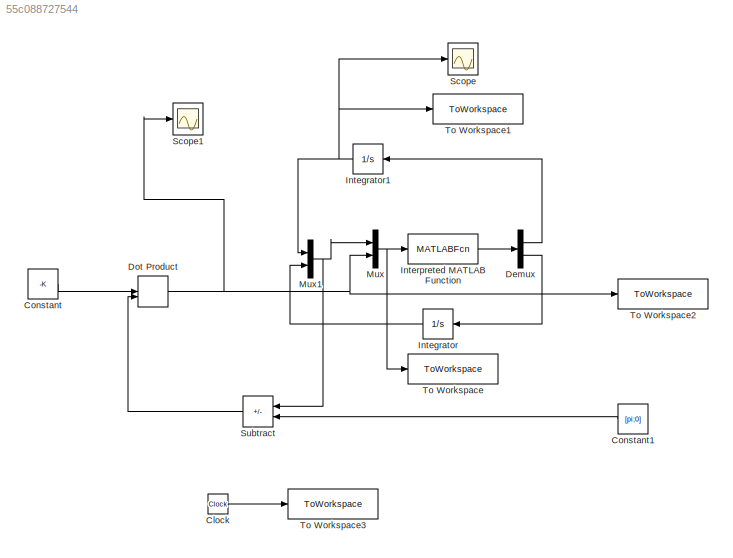
MODEL slx_55c088727544
KIND model
CONFIG AbsTol = auto
CONFIG EnableMultiTasking = off
CONFIG FixedStep = auto
CONFIG MaxStep = auto
CONFIG MinStep = auto
CONFIG RelTol = 1e-3
CONFIG SampleTimeConstraint = Unconstrained
CONFIG SolverName = VariableStepAuto
CONFIG StartTime = 0.0
CONFIG StopTime = 10.0
BLOCK [Clock] Clock
BLOCK [Constant] Constant
  Value = -K
BLOCK [Constant] Constant1
  NameLocation = top
  Value = [pi;0]
BLOCK [Demux] Demux
  Outputs = 2
BLOCK [DotProduct] Dot Product
  OutDataTypeStr = Inherit: Inherit via internal rule
BLOCK [Integrator] Integrator
  NameLocation = top
BLOCK [Integrator] Integrator1
  NameLocation = top
BLOCK [MATLABFcn] Interpreted MATLAB Function
  MATLABFcn = function_WP1
  OutputDimensions = 2
BLOCK [Mux] Mux
  DisplayOption = bar
  Inputs = 2
BLOCK [Mux] Mux1
  DisplayOption = bar
  Inputs = 2
BLOCK [Scope] Scope
  Floating = off
  NumInputPorts = 1
  ScopeSpecificationString = Simulink.scopes.TimeScopeBlockCfg('CurrentConfiguration', extmgr.ConfigurationSet(extmgr.Configuration('Core','General UI',true),extmgr.Configuration('Core','Source UI',true),extmgr.Configuration('Sources','WiredSimulink',true),extmgr.Configuration('Visuals','Time Domain',true,'SerializedDisplays',{struct('MinYLimReal','-0.39273','MaxYLimReal','3.53458','YLabelReal','','MinYLimMag','0.00000','MaxY...<+1362ch>
BLOCK [Scope] Scope1
  Floating = off
  NumInputPorts = 1
  ScopeSpecificationString = Simulink.scopes.TimeScopeBlockCfg('CurrentConfiguration', extmgr.ConfigurationSet(extmgr.Configuration('Core','General UI',true),extmgr.Configuration('Core','Source UI',true),extmgr.Configuration('Sources','WiredSimulink',true,'DataLoggingVariableName','ScopeData1'),extmgr.Configuration('Visuals','Time Domain',true,'SerializedDisplays',{struct('MinYLimReal','-16.92834','MaxYLimReal','151.69809','Y...<+1380ch>
BLOCK [Sum] Subtract
  IconShape = rectangular
  Inputs = +-
  NameLocation = top
BLOCK [ToWorkspace] To Workspace
  FixptAsFi = on
  MaxDataPoints = inf
  SampleTime = -1
  VariableName = x
BLOCK [ToWorkspace] To Workspace1
  FixptAsFi = on
  MaxDataPoints = inf
  SampleTime = -1
  VariableName = y
BLOCK [ToWorkspace] To Workspace2
  FixptAsFi = on
  MaxDataPoints = inf
  SampleTime = -1
  VariableName = u
BLOCK [ToWorkspace] To Workspace3
  FixptAsFi = on
  MaxDataPoints = inf
  SampleTime = -1
  VariableName = t
LINE Clock:1 -> To Workspace3:1
LINE Constant1:1 -> Subtract:2
LINE Constant:1 -> Dot Product:1
LINE Demux:1 -> Integrator1:1
LINE Demux:2 -> Integrator:1
NET Dot Product:1 -> Mux:2, Scope1:1, To Workspace2:1
NET Integrator1:1 -> Mux1:1, Scope:1, To Workspace1:1
LINE Integrator:1 -> Mux1:2
LINE Interpreted MATLAB Function:1 -> Demux:1
NET Mux1:1 -> Mux:1, Subtract:1
NET Mux:1 -> Interpreted MATLAB Function:1, To Workspace:1
LINE Subtract:1 -> Dot Product:2
note: NET lines group one-source signal fan-out (src -> all destinations, sorted); 1:1 wires keep LINE
